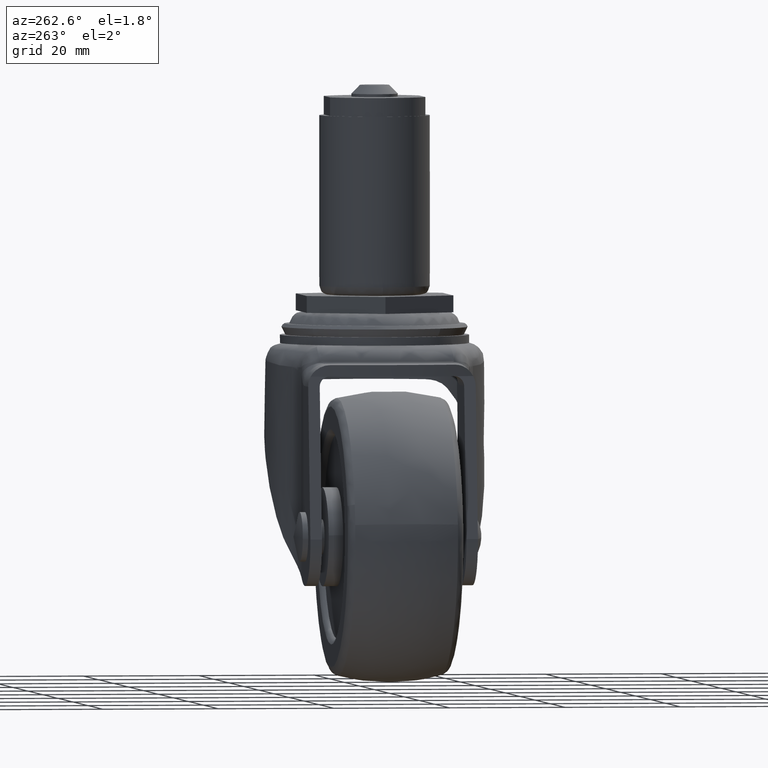
[diagram: clean part render]
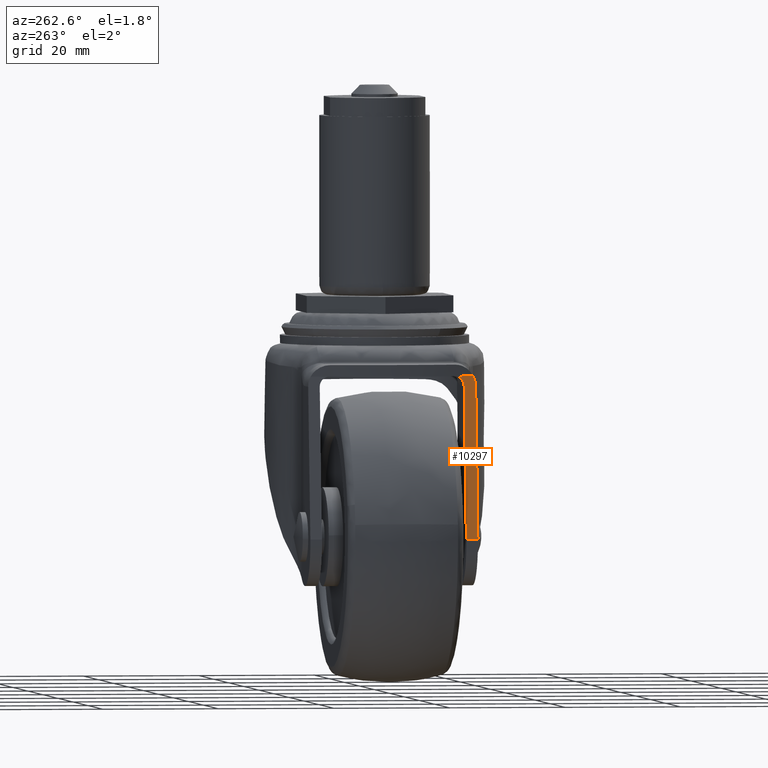
[diagram: same view with one face highlighted and labeled with its STEP entity id]
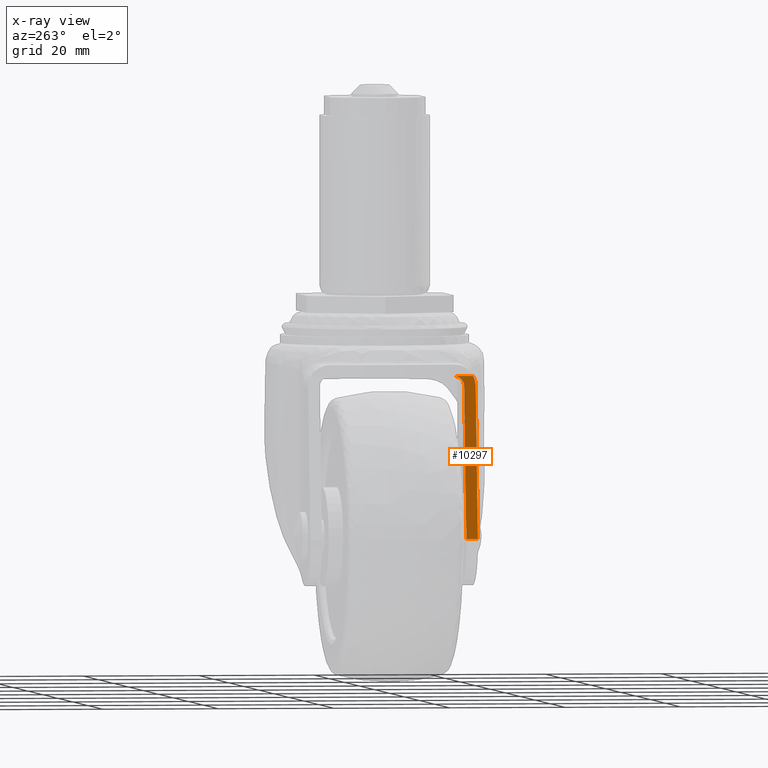
[diagram: x-ray of the same camera — body ghosted, the highlighted face saturated]
A machine part, auxiliary view. The second image highlights one B-rep face of the part: STEP entity #10297.
The next image is the same camera in x-ray: the body ghosted, the highlighted face saturated — about 0% of this face is hidden behind the body in this view.
In plain terms, the highlighted face is a freeform B-spline surface patch.
Its self-contained STEP definition (entity closure, byte-faithful):
#8311=CARTESIAN_POINT('',(-23.201319942602151,-14.500240000000000,-14.101519000000120));
#8312=VERTEX_POINT('',#8311);
#8313=CARTESIAN_POINT('',(-23.006175807149749,-14.066864790355460,-12.351519000000099));
#8314=VERTEX_POINT('',#8313);
#8315=CARTESIAN_POINT('',(-23.201319942602151,-14.500240000000000,-14.101519000000120));
#8316=CARTESIAN_POINT('',(-23.097764068382642,-14.500240000000005,-13.172857836476043));
#8317=CARTESIAN_POINT('',(-23.006175807149749,-14.066864790355460,-12.351519000000099));
#8325=(BOUNDED_CURVE()B_SPLINE_CURVE(2,(#8315,#8316,#8317),.UNSPECIFIED.,.F.,.U.)CURVE()GEOMETRIC_REPRESENTATION_ITEM()QUASI_UNIFORM_CURVE()RATIONAL_B_SPLINE_CURVE((1.0,0.970678442489619,1.0))REPRESENTATION_ITEM(''));
#8326=EDGE_CURVE('',#8312,#8314,#8325,.T.);
#9522=CARTESIAN_POINT('',(-23.006175807149749,-10.750240000000000,-12.351519000000099));
#9523=VERTEX_POINT('',#9522);
#9524=CARTESIAN_POINT('',(-23.201319942602151,-12.500240000000000,-14.101519000000120));
#9525=VERTEX_POINT('',#9524);
#9526=CARTESIAN_POINT('',(-23.006175807149749,-10.750240000000000,-12.351519000000099));
#9527=CARTESIAN_POINT('',(-23.006175812965473,-12.500240026077028,-12.351519052154167));
#9528=CARTESIAN_POINT('',(-23.201319942602151,-12.500240000000000,-14.101519000000120));
#9536=(BOUNDED_CURVE()B_SPLINE_CURVE(2,(#9526,#9527,#9528),.UNSPECIFIED.,.F.,.U.)CURVE()GEOMETRIC_REPRESENTATION_ITEM()QUASI_UNIFORM_CURVE()RATIONAL_B_SPLINE_CURVE((1.0,0.707106786454904,1.0))REPRESENTATION_ITEM(''));
#9537=EDGE_CURVE('',#9523,#9525,#9536,.T.);
#9831=CARTESIAN_POINT('',(-26.117611551857099,-12.500240000000000,-40.254040198941098));
#9832=VERTEX_POINT('',#9831);
#9848=CARTESIAN_POINT('',(-23.201319942602151,-12.500240000000000,-14.101519000000120));
#9849=CARTESIAN_POINT('',(-26.117611551857099,-12.500240000000000,-40.254040198941098));
#9850=QUASI_UNIFORM_CURVE('',1,(#9848,#9849),.UNSPECIFIED.,.F.,.U.);
#9851=EDGE_CURVE('',#9525,#9832,#9850,.T.);
#10270=CARTESIAN_POINT('',(-26.273028190613658,-14.687552817959670,-41.647770500499902));
#10271=CARTESIAN_POINT('',(-22.850759493851729,-14.687552817959670,-10.957787399298949));
#10272=CARTESIAN_POINT('',(-26.273028190613658,-10.562927953175420,-41.647770500499902));
#10273=CARTESIAN_POINT('',(-22.850759493851729,-10.562927953175420,-10.957787399298949));
#10274=B_SPLINE_SURFACE_WITH_KNOTS('',1,1,((#10270,#10272),(#10271,#10273)),.UNSPECIFIED.,.F.,.F.,.U.,(2,2),(2,2),(0.0,30.880203784703831),(0.0,4.124624864784256),.UNSPECIFIED.);
#10275=CARTESIAN_POINT('',(-26.117611551857099,-14.500240000000000,-40.254040198941098));
#10276=VERTEX_POINT('',#10275);
#10277=CARTESIAN_POINT('',(-23.201319942602151,-14.500240000000000,-14.101519000000120));
#10278=CARTESIAN_POINT('',(-26.117611551857099,-14.500240000000000,-40.254040198941098));
#10279=QUASI_UNIFORM_CURVE('',1,(#10277,#10278),.UNSPECIFIED.,.F.,.U.);
#10280=EDGE_CURVE('',#8312,#10276,#10279,.T.);
#10281=ORIENTED_EDGE('',*,*,#10280,.F.);
#10282=ORIENTED_EDGE('',*,*,#8326,.T.);
#10283=CARTESIAN_POINT('',(-23.006175807149749,-14.066864790355460,-12.351519000000099));
#10284=CARTESIAN_POINT('',(-23.006175807149749,-10.750240000000000,-12.351519000000099));
#10285=QUASI_UNIFORM_CURVE('',1,(#10283,#10284),.UNSPECIFIED.,.F.,.U.);
#10286=EDGE_CURVE('',#8314,#9523,#10285,.T.);
#10287=ORIENTED_EDGE('',*,*,#10286,.T.);
#10288=ORIENTED_EDGE('',*,*,#9537,.T.);
#10289=ORIENTED_EDGE('',*,*,#9851,.T.);
#10290=CARTESIAN_POINT('',(-26.117611551857099,-14.500240000000000,-40.254040198941098));
#10291=CARTESIAN_POINT('',(-26.117611551857099,-12.500240000000000,-40.254040198941098));
#10292=QUASI_UNIFORM_CURVE('',1,(#10290,#10291),.UNSPECIFIED.,.F.,.U.);
#10293=EDGE_CURVE('',#10276,#9832,#10292,.T.);
#10294=ORIENTED_EDGE('',*,*,#10293,.F.);
#10295=EDGE_LOOP('',(#10281,#10282,#10287,#10288,#10289,#10294));
#10296=FACE_OUTER_BOUND('',#10295,.T.);
#10297=ADVANCED_FACE('',(#10296),#10274,.T.);